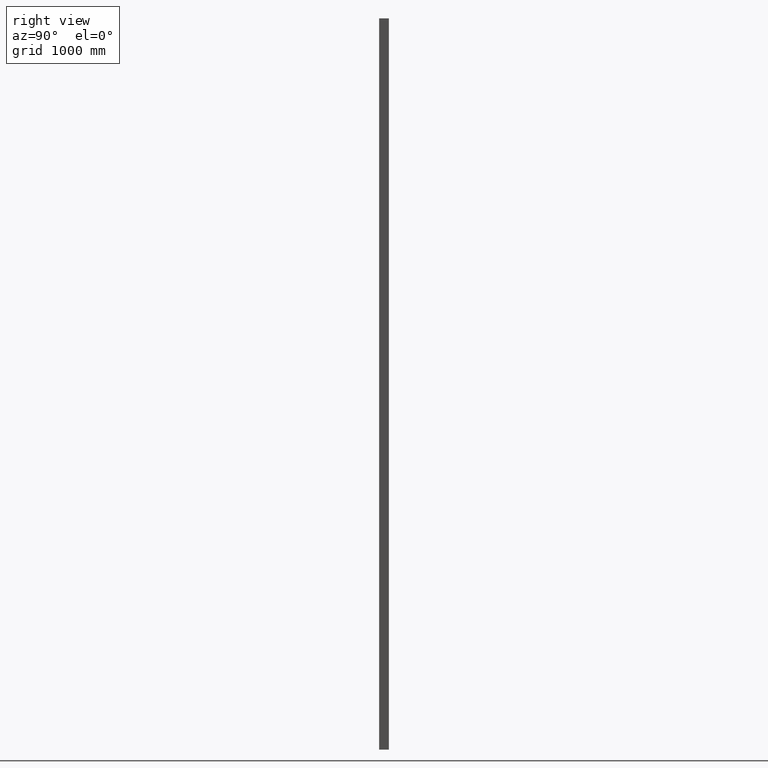
[diagram: clean part render]
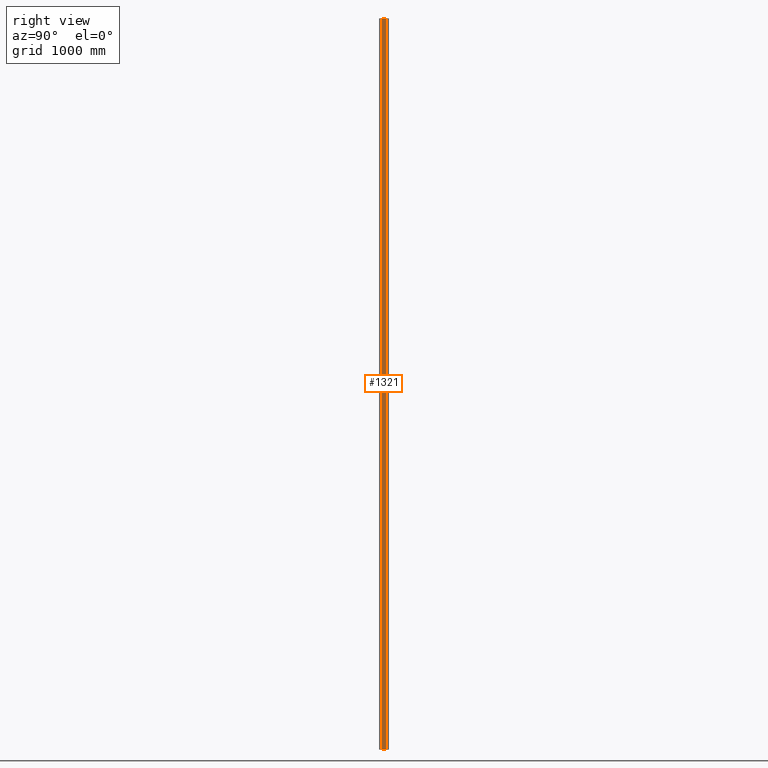
[diagram: same view with one face highlighted and labeled with its STEP entity id]
A machine part, right view. The second image highlights one B-rep face of the part: STEP entity #1321.
In plain terms, the highlighted planar face has unit normal (1, -0, 0).
Its self-contained STEP definition (entity closure, byte-faithful):
#850 = LINE ( 'NONE', #17323, #851 ) ;
#851 = VECTOR ( 'NONE', #17324, 1000.000000000000000 ) ;
#852 = LINE ( 'NONE', #17325, #853 ) ;
#853 = VECTOR ( 'NONE', #17326, 1000.000000000000000 ) ;
#1321 = ADVANCED_FACE ( 'NONE', ( #9440 ), #9680, .T. ) ;
#1789 = EDGE_LOOP ( 'NONE', ( #8527, #8528, #8529, #8530 ) ) ;
#6332 = LINE ( 'NONE', #6664, #6333 ) ;
#6333 = VECTOR ( 'NONE', #6665, 1000.000000000000000 ) ;
#6334 = LINE ( 'NONE', #6666, #6335 ) ;
#6335 = VECTOR ( 'NONE', #6667, 1000.000000000000000 ) ;
#6664 = CARTESIAN_POINT ( 'NONE',  ( 20.00000000000000000, -36.00000000000000700, -6000.000000000000000 ) ) ;
#6665 = DIRECTION ( 'NONE',  ( 0.0000000000000000000, 1.000000000000000000, 0.0000000000000000000 ) ) ;
#6666 = CARTESIAN_POINT ( 'NONE',  ( 20.00000000000000000, -60.00000000000000000, 0.0000000000000000000 ) ) ;
#6667 = DIRECTION ( 'NONE',  ( 0.0000000000000000000, 1.000000000000000000, 0.0000000000000000000 ) ) ;
#7142 = VERTEX_POINT ( 'NONE', #14362 ) ;
#7144 = VERTEX_POINT ( 'NONE', #14364 ) ;
#7146 = VERTEX_POINT ( 'NONE', #14366 ) ;
#7147 = VERTEX_POINT ( 'NONE', #14367 ) ;
#7523 = EDGE_CURVE ( 'NONE', #7144, #7142, #850, .T. ) ;
#7524 = EDGE_CURVE ( 'NONE', #7146, #7147, #852, .T. ) ;
#7774 = AXIS2_PLACEMENT_3D ( 'NONE', #9681, #9682, #9683 ) ;
#8527 = ORIENTED_EDGE ( 'NONE', *, *, #16316, .T. ) ;
#8528 = ORIENTED_EDGE ( 'NONE', *, *, #7523, .T. ) ;
#8529 = ORIENTED_EDGE ( 'NONE', *, *, #16317, .F. ) ;
#8530 = ORIENTED_EDGE ( 'NONE', *, *, #7524, .T. ) ;
#9440 = FACE_OUTER_BOUND ( 'NONE', #1789, .T. ) ;
#9680 = PLANE ( 'NONE',  #7774 ) ;
#9681 = CARTESIAN_POINT ( 'NONE',  ( 20.00000000000000000, -36.00000000000000700, 0.0000000000000000000 ) ) ;
#9682 = DIRECTION ( 'NONE',  ( 1.000000000000000000, -0.0000000000000000000, 0.0000000000000000000 ) ) ;
#9683 = DIRECTION ( 'NONE',  ( 0.0000000000000000000, 0.0000000000000000000, -1.000000000000000000 ) ) ;
#14362 = CARTESIAN_POINT ( 'NONE',  ( 20.00000000000000000, -4.000000000000000900, 0.0000000000000000000 ) ) ;
#14364 = CARTESIAN_POINT ( 'NONE',  ( 20.00000000000000000, -4.000000000000000900, -6000.000000000000000 ) ) ;
#14366 = CARTESIAN_POINT ( 'NONE',  ( 20.00000000000000000, -36.00000000000000700, 0.0000000000000000000 ) ) ;
#14367 = CARTESIAN_POINT ( 'NONE',  ( 20.00000000000000000, -36.00000000000000700, -6000.000000000000000 ) ) ;
#16316 = EDGE_CURVE ( 'NONE', #7147, #7144, #6332, .T. ) ;
#16317 = EDGE_CURVE ( 'NONE', #7146, #7142, #6334, .T. ) ;
#17323 = CARTESIAN_POINT ( 'NONE',  ( 20.00000000000000000, -4.000000000000000000, -3000.000000000000000 ) ) ;
#17324 = DIRECTION ( 'NONE',  ( -0.0000000000000000000, -0.0000000000000000000, 1.000000000000000000 ) ) ;
#17325 = CARTESIAN_POINT ( 'NONE',  ( 20.00000000000000000, -36.00000000000000700, -3000.000000000000000 ) ) ;
#17326 = DIRECTION ( 'NONE',  ( 0.0000000000000000000, 0.0000000000000000000, -1.000000000000000000 ) ) ;